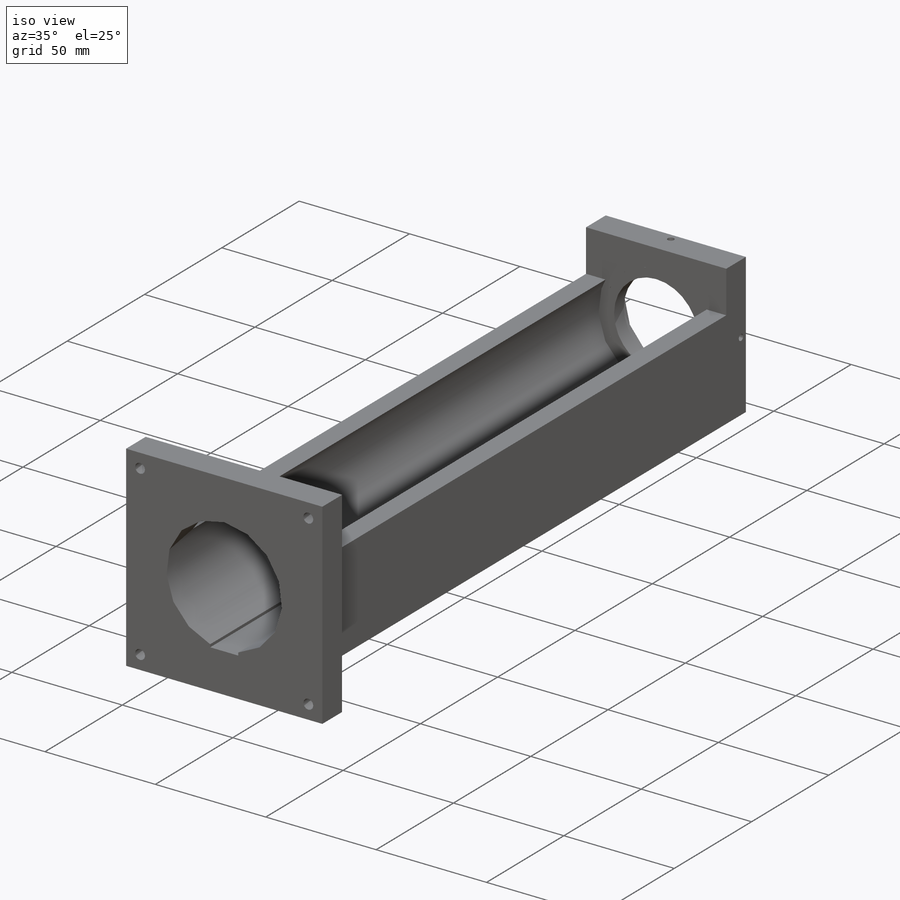
[diagram: iso view]
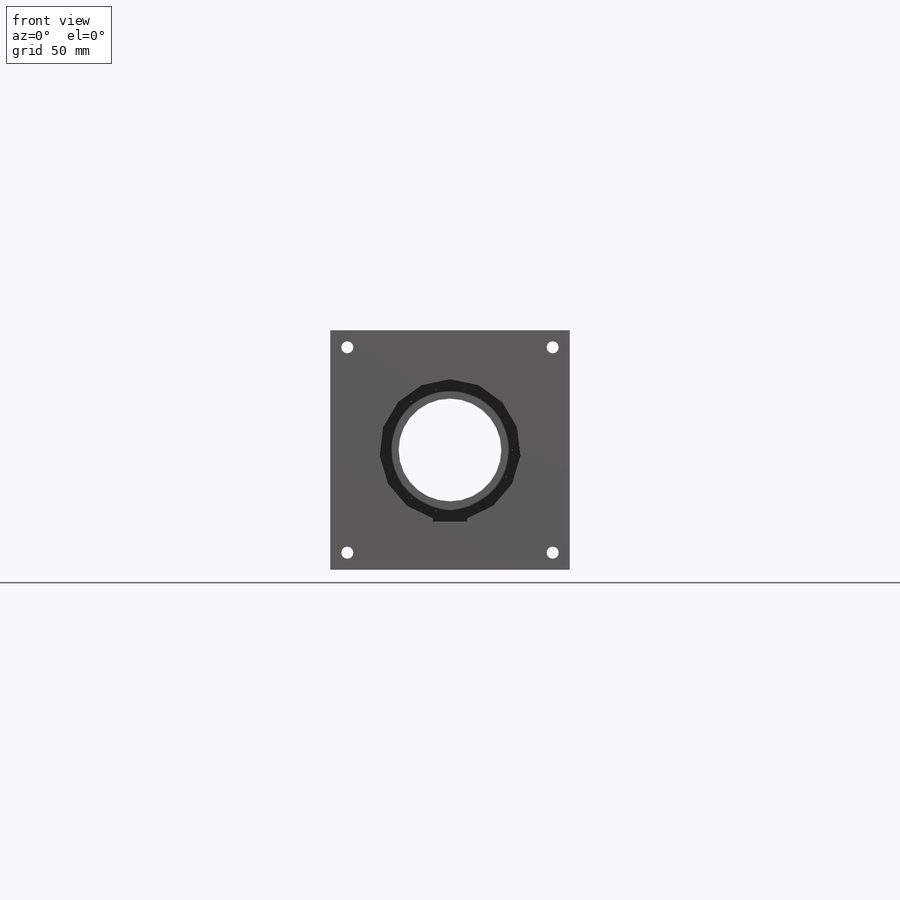
[diagram: front view]
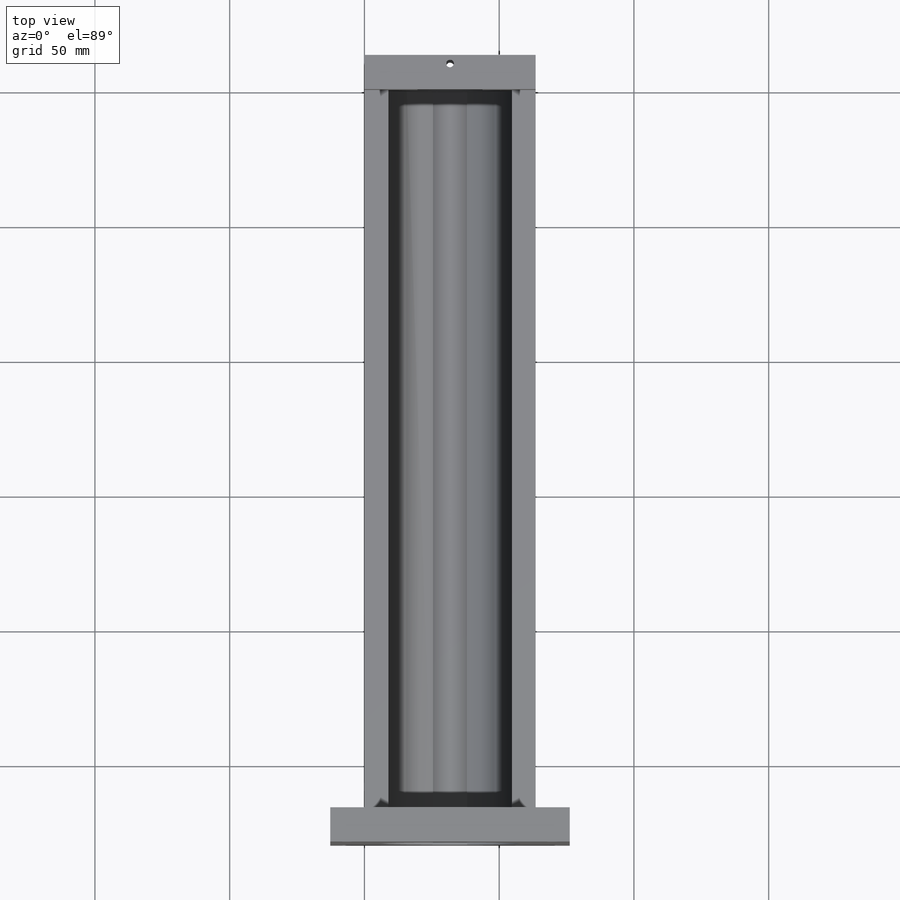
[diagram: top view]
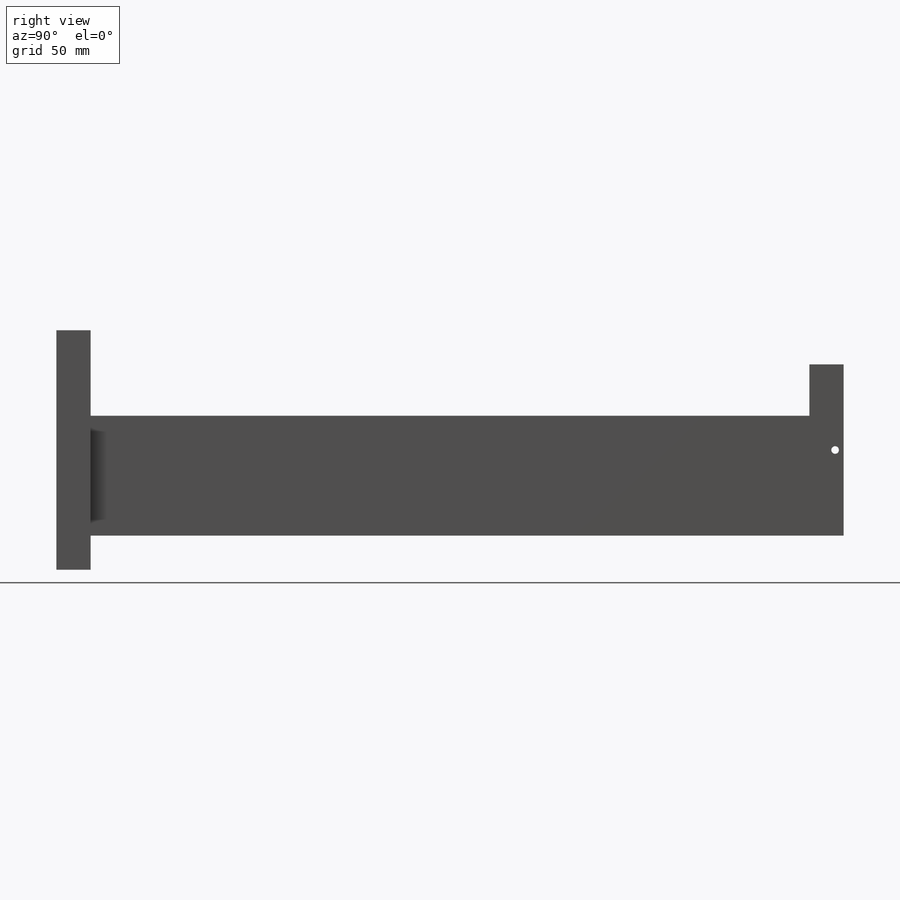
[diagram: right view]
SOLIDWORKS PART (.sldprt)
format: sldprt  version: not decoded by parser v0  size: 458,752 bytes
history: native  units: mm
features: sketch x14, extrude x4, hole x4, thread x4, cut_extrude x2, material x1, plane x1 (+13 scaffold rows collapsed)
feature tree (43):
  scaffold x13  (default folders/planes/origin — collapsed)
  material  "Material <not specified>"
  sketch  "Sketch2"  dims[c1.D3=52.3875mm c1.D4=52.3875mm c1.D5=52.3875mm c1.D6=52.3875mm c1.D7=52.3875mm c1.D8=52.3875mm c1.D1=63.5mm c1.D2=63.5mm c2.D4=31.75mm c2.D5=31.75mm c2.D6=31.75mm c2.D7=31.75mm c2.D8=32.4485mm]
  extrude  "Boss-Extrude1"  Depth=279.4mm
  sketch  "Sketch3"  dims[c1.D5=52.3875mm c1.D6=~46.633391mm c1.D1=28.575mm c1.D2=28.575mm c1.D3=12.7mm c1.D4=12.7mm c2.D5=~4.616937mm c2.D1=12.7mm c2.D2=12.7mm c2.D3=12.7mm c2.D4=12.7mm c3.D5=0.0mm c3.D6=0.0mm]
  extrude  "Boss-Extrude2"  Depth=12.7mm
  sketch  "Sketch4"  dims[D1=46.228mm D2=0.0mm]
  extrude  "Boss-Extrude3"  Depth=12.7mm
  plane  "Plane1"  Offset=6.35mm
  sketch  "Sketch5"  dims[D1=38.1mm D2=0.0mm]
  extrude  "Boss-Extrude4"  Depth=6.35mm
  sketch  "Sketch7"  dims[D1=19.05mm]
  cut_extrude  "Cut-Extrude2"  [1 undecoded]
  hole  "#6-40 Tapped Hole1"  Diameter=2.8702mm Depth=76.2mm
  sketch  "Sketch9"  dims[D1=3.175mm D2=31.75mm D3=31.75mm]
  sketch  "Sketch8"  dims[hole-wizard template sketch: 59 standard entries collapsed; hole parameters kept: c18.Thru Tap Drill Dia.=2.8702mm c18.Thru Tap Drill Depth=76.2mm]
  thread  "Hole Thread1"  Diameter=3.5052mm  [1 undecoded]
  hole  "#6-40 Tapped Hole2"  Diameter=2.8702mm Depth=76.2mm
  sketch  "Sketch11"  dims[D1=31.75mm D2=3.175mm]
  sketch  "Sketch10"  dims[hole-wizard template sketch: 59 standard entries collapsed; hole parameters kept: c18.Thru Tap Drill Dia.=2.8702mm c18.Thru Tap Drill Depth=76.2mm]
  thread  "Hole Thread2"  Diameter=3.5052mm  [1 undecoded]
  hole  "CSK for #8 Flat Head Machine Screw1"  Diameter=4.4958mm Depth=12.7mm
  sketch  "Sketch14"  dims[D1=76.2mm D2=6.35mm D3=6.35mm D4=76.2mm D5=6.35mm D6=76.2mm D7=76.2mm D8=6.35mm D9=6.35mm]
  sketch  "Sketch12"  dims[hole-wizard template sketch: 55 standard entries collapsed; hole parameters kept: c17.Thru Hole Depth=12.7mm c17.Near C'Sink Dia.=8.4328mm c17.D4=~3.666174mm c17.Near C'Sink Angle=82.0deg]
  sketch  "Sketch16"  dims[D1=26.67mm D2=12.7mm D3=38.1mm D4=38.1mm]
  cut_extrude  "Cut-Extrude3"  Depth=279.4mm
  hole  "1/4-20 Tapped Hole1"  Diameter=5.1054mm Depth=10.16mm
  sketch  "Sketch18"  dims[D1=12.7mm D2=12.7mm D3=50.8mm D4=50.8mm]
  sketch  "Sketch19"  dims[hole-wizard template sketch: 47 standard entries collapsed; hole parameters kept: c15.Tap Drill Depth=10.16mm c15.D3=~14.816244mm c15.Drill Angle=118.0deg]
  thread  "Hole Thread3"  Diameter=10.16mm  [1 undecoded]
  thread  "Hole Thread4"  Diameter=10.16mm  [1 undecoded]
decode coverage: 27 of 28 modeling features carry decoded parameters
note: ~ marks probable driven/reference dimensions
note: 5 parameter values undecoded
summary: Diameter pulled from absorbed wizard sketch
note: suppression state not decoded; provenance and decode notes live in map.json
